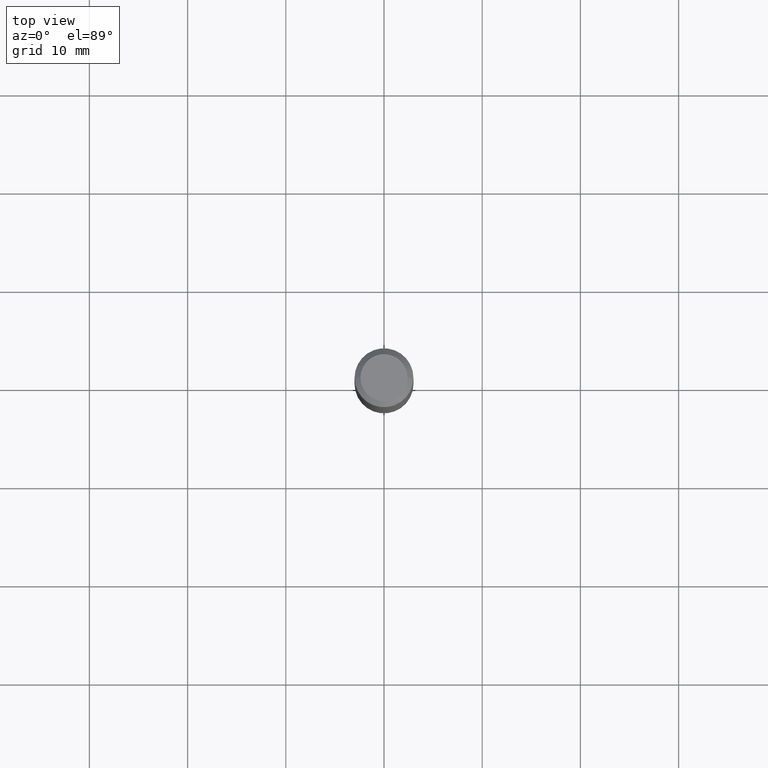
[diagram: clean part render]
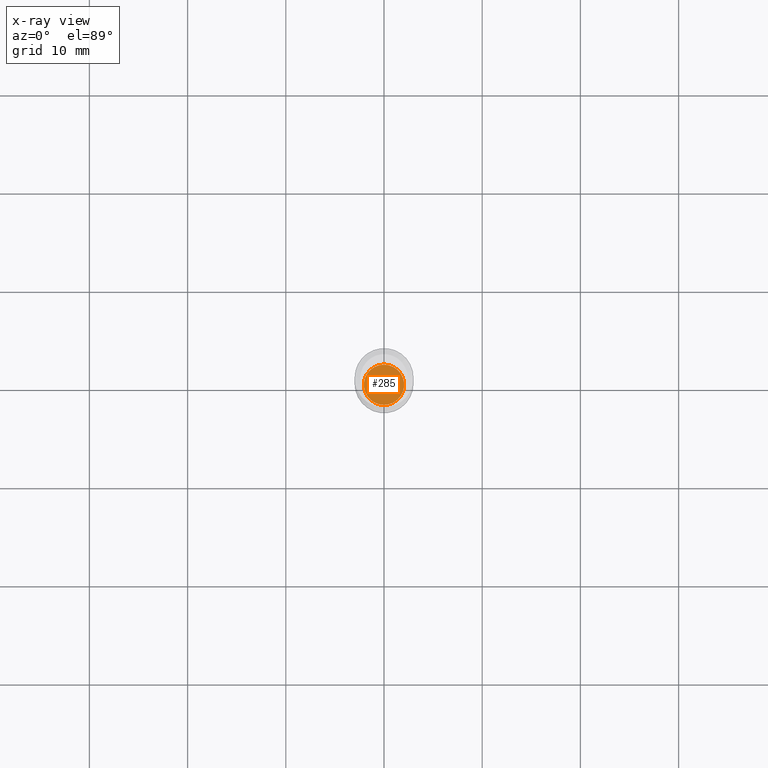
[diagram: x-ray — body ghosted, one internal face saturated and labeled with its STEP entity id]
A machine part, top view, then the same camera in x-ray: the body is ghosted and one INTERNAL B-rep face — a face not visible from any outside direction — is saturated and labeled: STEP entity #285.
In plain terms, the highlighted planar face has unit normal (0, -0, -1).
Its self-contained STEP definition (entity closure, byte-faithful):
#1 = CARTESIAN_POINT ( 'NONE',  ( 4.053364546251863371E-29, -5.787130319132513889E-15, -1.657499999999999973 ) ) ;
#11 = CIRCLE ( 'NONE', #68, 0.08069999999999999396 ) ;
#15 = EDGE_LOOP ( 'NONE', ( #255, #47 ) ) ;
#16 = PLANE ( 'NONE',  #405 ) ;
#41 = VERTEX_POINT ( 'NONE', #391 ) ;
#47 = ORIENTED_EDGE ( 'NONE', *, *, #168, .T. ) ;
#68 = AXIS2_PLACEMENT_3D ( 'NONE', #1, #71, #157 ) ;
#71 = DIRECTION ( 'NONE',  ( -2.445522596700028966E-29, 3.491404307764253718E-15, 1.000000000000000000 ) ) ;
#73 = AXIS2_PLACEMENT_3D ( 'NONE', #286, #287, #246 ) ;
#137 = DIRECTION ( 'NONE',  ( 6.982962677686265922E-15, 1.000000000000000000, -3.491404307764253324E-15 ) ) ;
#157 = DIRECTION ( 'NONE',  ( -6.982962677686266711E-15, -1.000000000000000000, 3.385189583227092077E-15 ) ) ;
#168 = EDGE_CURVE ( 'NONE', #41, #399, #11, .T. ) ;
#174 = CARTESIAN_POINT ( 'NONE',  ( 4.053364546251863371E-29, -5.787130319132513889E-15, -1.657499999999999973 ) ) ;
#246 = DIRECTION ( 'NONE',  ( -6.982962677686266711E-15, -1.000000000000000000, 3.385189583227092077E-15 ) ) ;
#255 = ORIENTED_EDGE ( 'NONE', *, *, #326, .T. ) ;
#282 = CARTESIAN_POINT ( 'NONE',  ( -5.635250880892411374E-16, -0.08070000000000578100, -1.657499999999999751 ) ) ;
#285 = ADVANCED_FACE ( 'NONE', ( #358 ), #16, .F. ) ;
#286 = CARTESIAN_POINT ( 'NONE',  ( 4.053364546251863371E-29, -5.787130319132513889E-15, -1.657499999999999973 ) ) ;
#287 = DIRECTION ( 'NONE',  ( -2.445522596700028966E-29, 3.491404307764253718E-15, 1.000000000000000000 ) ) ;
#326 = EDGE_CURVE ( 'NONE', #399, #41, #474, .T. ) ;
#358 = FACE_OUTER_BOUND ( 'NONE', #15, .T. ) ;
#391 = CARTESIAN_POINT ( 'NONE',  ( 5.734079877584710157E-16, 0.08069999999999420692, -1.657500000000000195 ) ) ;
#399 = VERTEX_POINT ( 'NONE', #282 ) ;
#405 = AXIS2_PLACEMENT_3D ( 'NONE', #174, #465, #137 ) ;
#465 = DIRECTION ( 'NONE',  ( 2.445522596700028966E-29, -3.491404307764253324E-15, -1.000000000000000000 ) ) ;
#474 = CIRCLE ( 'NONE', #73, 0.08069999999999999396 ) ;